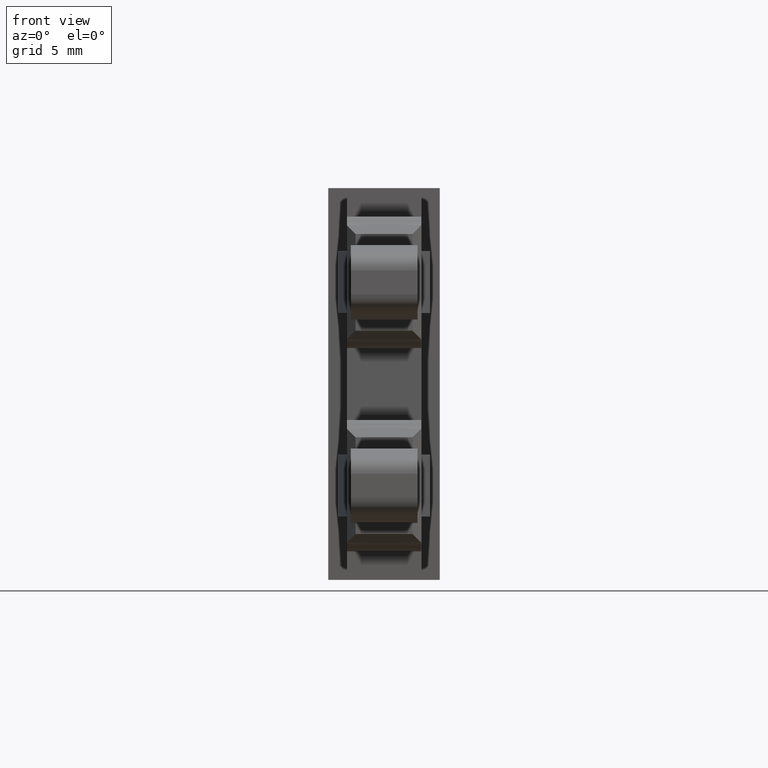
[diagram: clean part render]
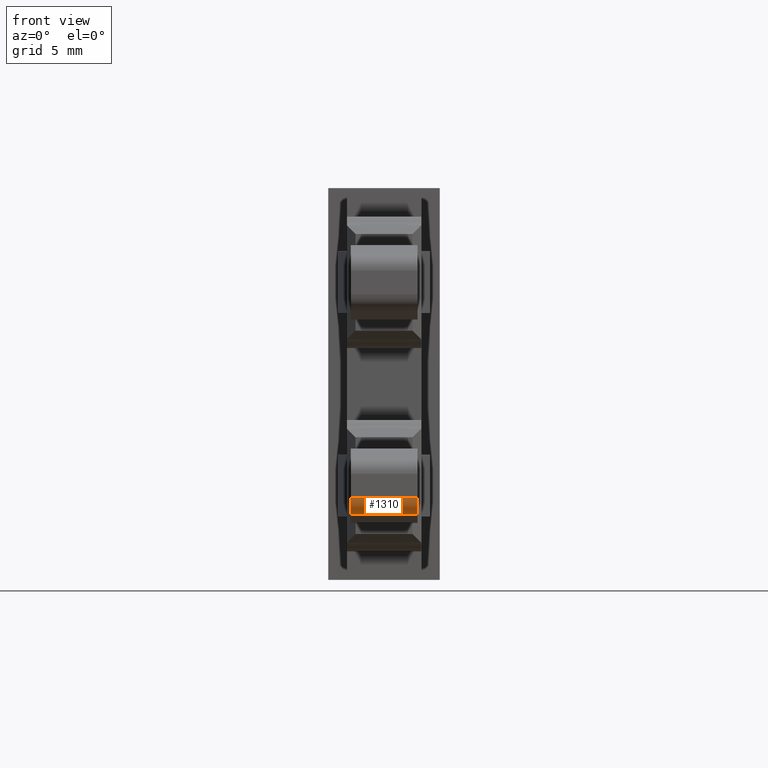
[diagram: same view with one face highlighted and labeled with its STEP entity id]
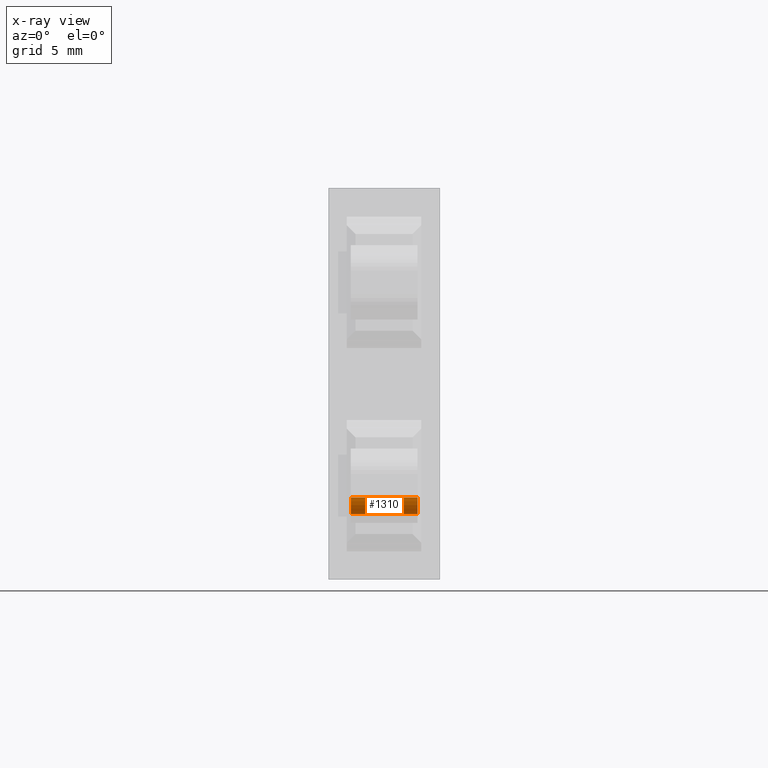
[diagram: x-ray of the same camera — body ghosted, the highlighted face saturated]
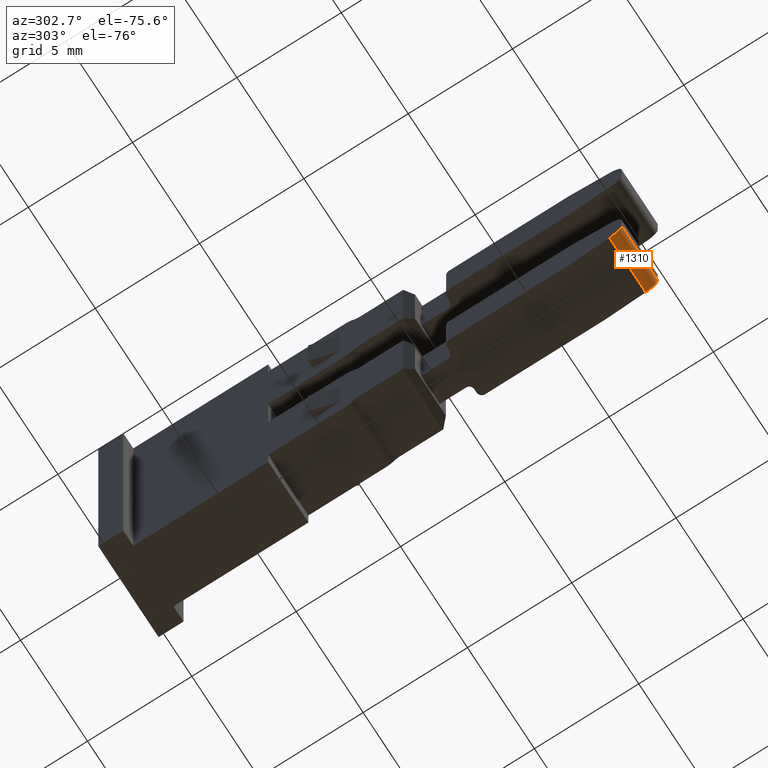
[diagram: same view with one face highlighted and labeled with its STEP entity id]
A machine part, front view. The second image highlights one B-rep face of the part: STEP entity #1310.
The next image is the same camera in x-ray: the body ghosted, the highlighted face saturated — about 0% of this face is hidden behind the body in this view.
A second angle (auxiliary view) of the same face is appended — the face is thin or edge-on in the first view.
In plain terms, the highlighted cylindrical surface (edge-blend (fillet) strip) has radius 0.7 mm, axis along (1, 0, 0).
Its self-contained STEP definition (entity closure, byte-faithful):
#368 = CARTESIAN_POINT ( 'NONE',  ( 109.4024523974272800, 236.5069065328610800, 160.5691701297483600 ) ) ;
#379 = DIRECTION ( 'NONE',  ( 1.000000000000000000, 2.643655590711542200E-014, 7.193572994224081300E-015 ) ) ;
#380 = CARTESIAN_POINT ( 'NONE',  ( 100.4203046668919100, 236.5069065328608200, 160.5691701297483000 ) ) ;
#385 = DIRECTION ( 'NONE',  ( 1.000000000000000000, 2.643655590711542200E-014, 7.193572994224081300E-015 ) ) ;
#390 = DIRECTION ( 'NONE',  ( -1.982541115402047700E-014, 1.000000000000000000, 0.0000000000000000000 ) ) ;
#403 = DIRECTION ( 'NONE',  ( -1.982541115402047700E-014, 1.000000000000000000, 0.0000000000000000000 ) ) ;
#404 = FACE_OUTER_BOUND ( 'NONE', #2189, .T. ) ;
#410 = CYLINDRICAL_SURFACE ( 'NONE', #1712, 0.7000000000000061700 ) ;
#481 = DIRECTION ( 'NONE',  ( -1.000000000000000000, -2.643655590711542200E-014, -7.193572994224081300E-015 ) ) ;
#484 = DIRECTION ( 'NONE',  ( -1.982541115402047700E-014, 1.000000000000000000, 0.0000000000000000000 ) ) ;
#494 = CARTESIAN_POINT ( 'NONE',  ( 112.0980534371292800, 236.5069065328611400, 160.5691701297483900 ) ) ;
#514 = LINE ( 'NONE', #521, #1829 ) ;
#518 = DIRECTION ( 'NONE',  ( 1.000000000000000000, 2.027333134354696000E-015, 1.149757754718231300E-014 ) ) ;
#519 = LINE ( 'NONE', #531, #1827 ) ;
#521 = CARTESIAN_POINT ( 'NONE',  ( 100.4203046668918700, 236.3853528084942800, 159.8798047026397200 ) ) ;
#525 = DIRECTION ( 'NONE',  ( -1.000000000000000000, -2.643655590711542200E-014, -7.193572994224081300E-015 ) ) ;
#531 = CARTESIAN_POINT ( 'NONE',  ( 100.4203046668919200, 235.8069065328608100, 160.5691701297483000 ) ) ;
#868 = CARTESIAN_POINT ( 'NONE',  ( 112.0980534371292900, 236.3853528084943600, 159.8798047026398600 ) ) ;
#924 = CARTESIAN_POINT ( 'NONE',  ( 109.4024523974273000, 235.8069065328610600, 160.5691701297483600 ) ) ;
#938 = CARTESIAN_POINT ( 'NONE',  ( 109.4024523974272500, 236.3853528084943300, 159.8798047026398000 ) ) ;
#959 = CARTESIAN_POINT ( 'NONE',  ( 112.0980534371292900, 235.8069065328611200, 160.5691701297483900 ) ) ;
#1308 = EDGE_CURVE ( 'NONE', #2555, #2565, #1752, .T. ) ;
#1310 = ADVANCED_FACE ( 'NONE', ( #404 ), #410, .T. ) ;
#1330 = EDGE_CURVE ( 'NONE', #2534, #2544, #1832, .T. ) ;
#1335 = EDGE_CURVE ( 'NONE', #2544, #2555, #519, .T. ) ;
#1339 = EDGE_CURVE ( 'NONE', #2565, #2534, #514, .T. ) ;
#1712 = AXIS2_PLACEMENT_3D ( 'NONE', #380, #385, #390 ) ;
#1752 = CIRCLE ( 'NONE', #1768, 0.7000000000000061700 ) ;
#1768 = AXIS2_PLACEMENT_3D ( 'NONE', #368, #379, #403 ) ;
#1801 = AXIS2_PLACEMENT_3D ( 'NONE', #494, #481, #484 ) ;
#1827 = VECTOR ( 'NONE', #525, 1000.000000000000000 ) ;
#1829 = VECTOR ( 'NONE', #518, 1000.000000000000000 ) ;
#1832 = CIRCLE ( 'NONE', #1801, 0.7000000000000061700 ) ;
#2189 = EDGE_LOOP ( 'NONE', ( #2772, #2810, #2806, #2879 ) ) ;
#2534 = VERTEX_POINT ( 'NONE', #868 ) ;
#2544 = VERTEX_POINT ( 'NONE', #959 ) ;
#2555 = VERTEX_POINT ( 'NONE', #924 ) ;
#2565 = VERTEX_POINT ( 'NONE', #938 ) ;
#2772 = ORIENTED_EDGE ( 'NONE', *, *, #1339, .T. ) ;
#2806 = ORIENTED_EDGE ( 'NONE', *, *, #1335, .T. ) ;
#2810 = ORIENTED_EDGE ( 'NONE', *, *, #1330, .T. ) ;
#2879 = ORIENTED_EDGE ( 'NONE', *, *, #1308, .T. ) ;